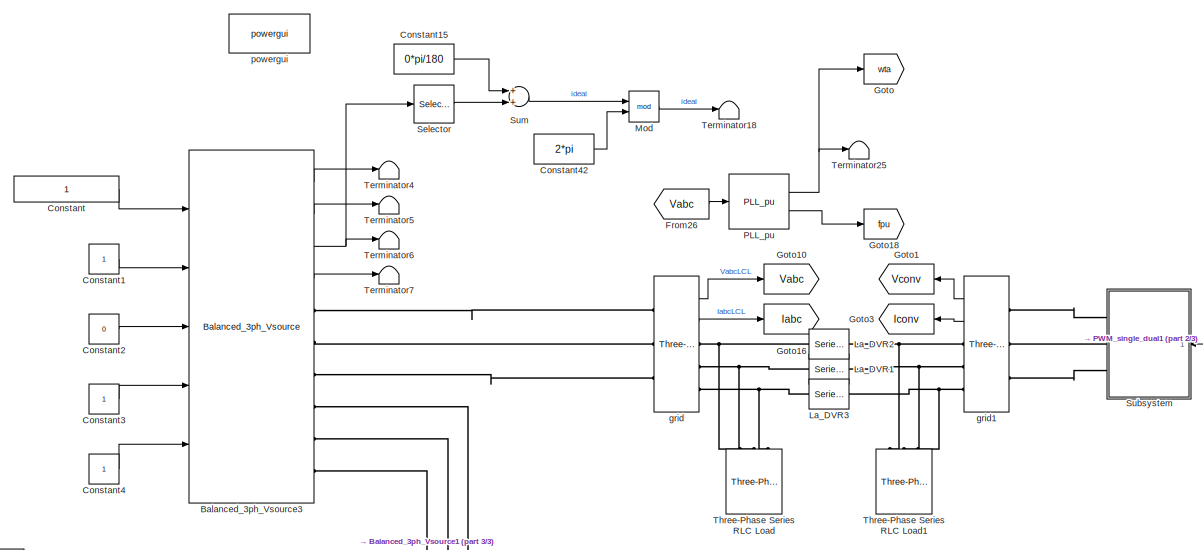
[diagram: root canvas - part 1/3, top left region]
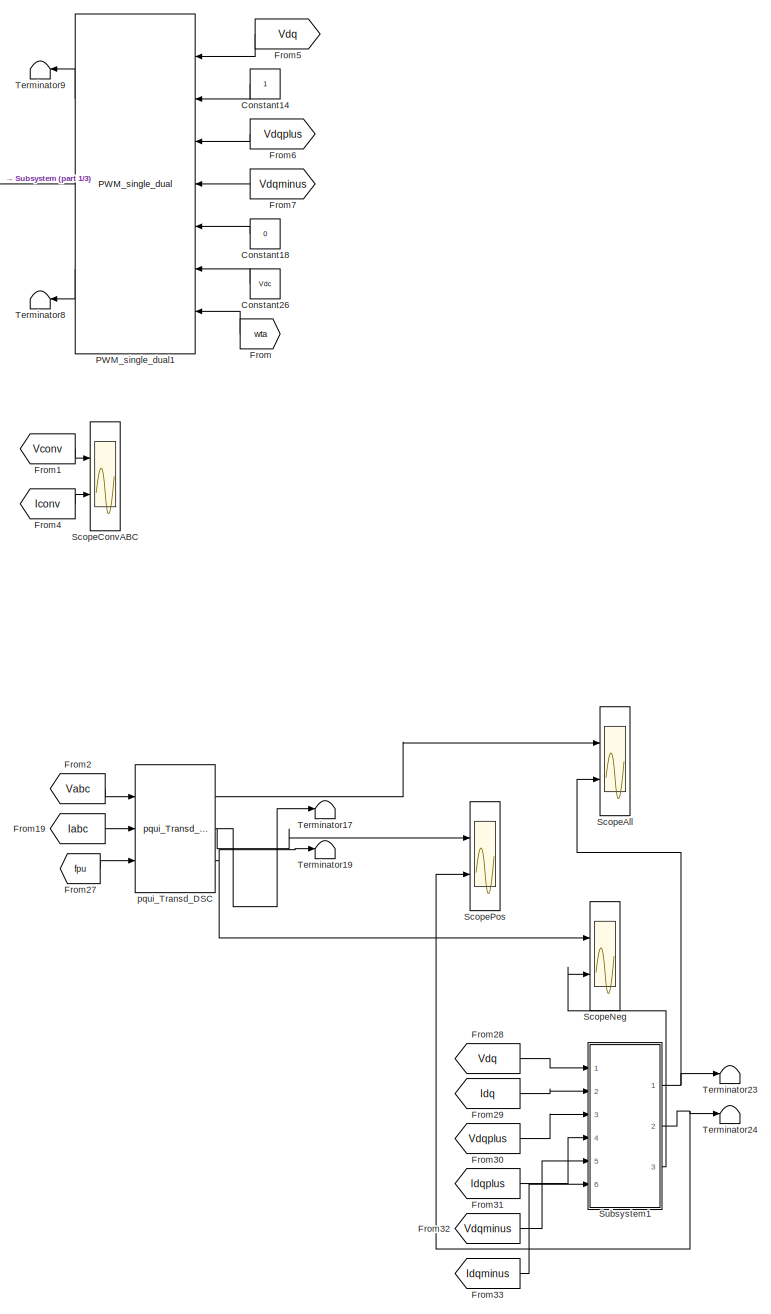
[diagram: root canvas - part 2/3, right side, full height]
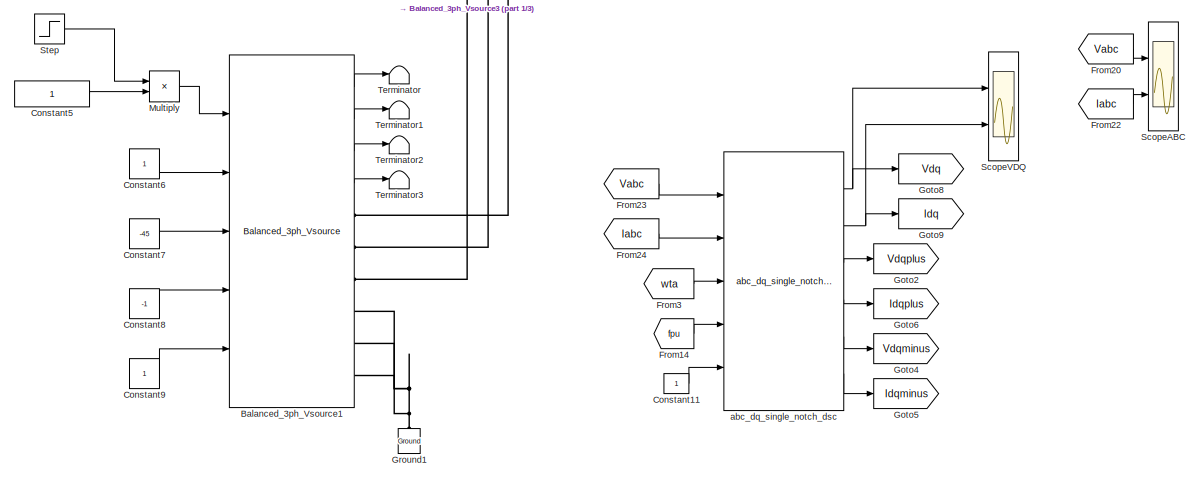
[diagram: root canvas - part 3/3, middle left region]
MODEL slx_2fd5eea96e40
KIND model
CONFIG AbsTol = auto
CONFIG EnableMultiTasking = off
CONFIG FixedStep = Ts
CONFIG InitFcn = SequenceSeparation_script
CONFIG MaxStep = auto
CONFIG MinStep = auto
CONFIG RelTol = 1e-3
CONFIG SampleTimeConstraint = Unconstrained
CONFIG Solver = ode5
CONFIG SolverName = ode5
CONFIG StartTime = 0.0
CONFIG StopTime = 0.2
BLOCK [Reference] Balanced_3ph_Vsource1  REF=pwrsysVSrc_202301/Balanced_3ph_Vsource
  Ports = [5, 4, 0, 0, 0, 0, 6]
  SourceBlock = pwrsysVSrc_202301/Balanced_3ph_Vsource
  SourceType = Three-phase balanced voltage source
BLOCK [Reference] Balanced_3ph_Vsource3  REF=pwrsysVSrc_202301/Balanced_3ph_Vsource
  Ports = [5, 4, 0, 0, 0, 0, 6]
  SourceBlock = pwrsysVSrc_202301/Balanced_3ph_Vsource
  SourceType = Three-phase balanced voltage source
BLOCK [Constant] Constant
BLOCK [Constant] Constant1
BLOCK [Constant] Constant11
BLOCK [Constant] Constant14
BLOCK [Constant] Constant15
  Value = 0*pi/180
BLOCK [Constant] Constant18
  Value = 0
BLOCK [Constant] Constant2
  Value = 0
BLOCK [Constant] Constant26
  Value = Vdc
BLOCK [Constant] Constant3
BLOCK [Constant] Constant4
BLOCK [Constant] Constant42
  Value = 2*pi
BLOCK [Constant] Constant5
BLOCK [Constant] Constant6
BLOCK [Constant] Constant7
  Value = -45
BLOCK [Constant] Constant8
  Value = -1
BLOCK [Constant] Constant9
BLOCK [From] From
  GotoTag = wta
BLOCK [From] From1
  GotoTag = Vconv
BLOCK [From] From14
  GotoTag = fpu
BLOCK [From] From19
  GotoTag = Iabc
BLOCK [From] From2
  GotoTag = Vabc
BLOCK [From] From20
  GotoTag = Vabc
BLOCK [From] From22
  GotoTag = Iabc
BLOCK [From] From23
  GotoTag = Vabc
BLOCK [From] From24
  GotoTag = Iabc
BLOCK [From] From26
  GotoTag = Vabc
BLOCK [From] From27
  GotoTag = fpu
BLOCK [From] From28
  GotoTag = Vdq
BLOCK [From] From29
  GotoTag = Idq
BLOCK [From] From3
  GotoTag = wta
BLOCK [From] From30
  GotoTag = Vdqplus
BLOCK [From] From31
  GotoTag = Idqplus
BLOCK [From] From32
  GotoTag = Vdqminus
BLOCK [From] From33
  GotoTag = Idqminus
BLOCK [From] From4
  GotoTag = Iconv
BLOCK [From] From5
  GotoTag = Vdq
BLOCK [From] From6
  GotoTag = Vdqplus
BLOCK [From] From7
  GotoTag = Vdqminus
BLOCK [Goto] Goto
  GotoTag = wta
BLOCK [Goto] Goto1
  GotoTag = Vconv
BLOCK [Goto] Goto10
  GotoTag = Vabc
BLOCK [Goto] Goto16
  GotoTag = Iabc
BLOCK [Goto] Goto18
  GotoTag = fpu
BLOCK [Goto] Goto2
  GotoTag = Vdqplus
BLOCK [Goto] Goto3
  GotoTag = Iconv
BLOCK [Goto] Goto4
  GotoTag = Vdqminus
BLOCK [Goto] Goto5
  GotoTag = Idqminus
BLOCK [Goto] Goto6
  GotoTag = Idqplus
BLOCK [Goto] Goto8
  GotoTag = Vdq
BLOCK [Goto] Goto9
  GotoTag = Idq
BLOCK [Reference] Ground1  REF=powerlib/Elements/Ground
  Ports = [0, 0, 0, 0, 0, 1]
  SourceBlock = powerlib/Elements/Ground
  SourceProductBaseCode = PS
  SourceProductName = Simscape Power Systems
  SourceType = Ground
BLOCK [Reference] La_DVR1  REF=powerlib/Elements/Series RLC Branch
  AttributesFormatString = \n
  Commented = on
  Ports = [0, 0, 0, 0, 0, 1, 1]
  SourceBlock = powerlib/Elements/Series RLC Branch
  SourceProductBaseCode = PS
  SourceProductName = Simscape Power Systems
  SourceType = Series RLC Branch
BLOCK [Reference] La_DVR2  REF=powerlib/Elements/Series RLC Branch
  AttributesFormatString = \n
  Commented = on
  Ports = [0, 0, 0, 0, 0, 1, 1]
  SourceBlock = powerlib/Elements/Series RLC Branch
  SourceProductBaseCode = PS
  SourceProductName = Simscape Power Systems
  SourceType = Series RLC Branch
BLOCK [Reference] La_DVR3  REF=powerlib/Elements/Series RLC Branch
  AttributesFormatString = \n
  Commented = on
  Ports = [0, 0, 0, 0, 0, 1, 1]
  SourceBlock = powerlib/Elements/Series RLC Branch
  SourceProductBaseCode = PS
  SourceProductName = Simscape Power Systems
  SourceType = Series RLC Branch
BLOCK [Math] Mod
  Operator = mod
  Ports = [2, 1]
BLOCK [Product] Multiply
  InputSameDT = off
  OutDataTypeStr = Inherit: Inherit via internal rule
  Ports = [2, 1]
  RndMeth = Floor
  SaturateOnIntegerOverflow = off
BLOCK [Reference] PLL_pu  REF=pwrsysBasic_202301/PLL_pu
  Ports = [1, 2]
  SourceBlock = pwrsysBasic_202301/PLL_pu
  SourceType = Matlabs PLL with POS and NEG omega t output
BLOCK [Reference] PWM_single_dual1  REF=pwrsysVICtrl_202301/PWM_single_dual
  Ports = [7, 3]
  SourceBlock = pwrsysVICtrl_202301/PWM_single_dual
  SourceType = Scaling of vdq ref and PWM gate generation
BLOCK [Scope] ScopeABC
  Floating = off
  NumInputPorts = 2
  Ports = [2]
  ScopeSpecificationString = Simulink.scopes.TimeScopeBlockCfg('CurrentConfiguration', extmgr.ConfigurationSet(extmgr.Configuration('Core','General UI',true),extmgr.Configuration('Core','Source UI',true),extmgr.Configuration('Sources','WiredSimulink',true),extmgr.Configuration('Visuals','Time Domain',true,'SerializedDisplays',{struct('MinYLimReal','-2.3097','MaxYLimReal','2.3097','YLabelReal','','MinYLimMag','0.00000','MaxYLi...<+2153ch>
BLOCK [Scope] ScopeAll
  Floating = off
  NumInputPorts = 2
  Ports = [2]
  ScopeSpecificationString = Simulink.scopes.TimeScopeBlockCfg('CurrentConfiguration', extmgr.ConfigurationSet(extmgr.Configuration('Core','General UI',true),extmgr.Configuration('Core','Source UI',true),extmgr.Configuration('Sources','WiredSimulink',true,'DataLoggingVariableName','ScopeData1'),extmgr.Configuration('Visuals','Time Domain',true,'SerializedDisplays',{struct('MinYLimReal','-0.50813','MaxYLimReal','2.54674','YLab...<+2265ch>
BLOCK [Scope] ScopeConvABC
  Floating = off
  NumInputPorts = 2
  Ports = [2]
  ScopeSpecificationString = Simulink.scopes.TimeScopeBlockCfg('CurrentConfiguration', extmgr.ConfigurationSet(extmgr.Configuration('Core','General UI',true),extmgr.Configuration('Core','Source UI',true),extmgr.Configuration('Sources','WiredSimulink',true,'DataLoggingVariableName','ScopeData1'),extmgr.Configuration('Visuals','Time Domain',true,'SerializedDisplays',{struct('MinYLimReal','-2.30941','MaxYLimReal','2.30941','YLab...<+2216ch>
BLOCK [Scope] ScopeNeg
  Floating = off
  NumInputPorts = 2
  Ports = [2]
  ScopeSpecificationString = Simulink.scopes.TimeScopeBlockCfg('CurrentConfiguration', extmgr.ConfigurationSet(extmgr.Configuration('Core','General UI',true),extmgr.Configuration('Core','Source UI',true),extmgr.Configuration('Sources','WiredSimulink',true,'DataLoggingVariableName','ScopeData3'),extmgr.Configuration('Visuals','Time Domain',true,'SerializedDisplays',{struct('MinYLimReal','-0.3125','MaxYLimReal','1.14583','YLabe...<+2210ch>
BLOCK [Scope] ScopePos
  Floating = off
  NumInputPorts = 2
  Ports = [2]
  ScopeSpecificationString = Simulink.scopes.TimeScopeBlockCfg('CurrentConfiguration', extmgr.ConfigurationSet(extmgr.Configuration('Core','General UI',true),extmgr.Configuration('Core','Source UI',true),extmgr.Configuration('Sources','WiredSimulink',true,'DataLoggingVariableName','ScopeData2'),extmgr.Configuration('Visuals','Time Domain',true,'SerializedDisplays',{struct('MinYLimReal','-5.49075','MaxYLimReal','5.54829','YLab...<+2211ch>
BLOCK [Scope] ScopeVDQ
  Floating = off
  NumInputPorts = 2
  Ports = [2]
  ScopeSpecificationString = Simulink.scopes.TimeScopeBlockCfg('CurrentConfiguration', extmgr.ConfigurationSet(extmgr.Configuration('Core','General UI',true),extmgr.Configuration('Core','Source UI',true),extmgr.Configuration('Sources','WiredSimulink',true,'DataLoggingVariableName','ScopeData4'),extmgr.Configuration('Visuals','Time Domain',true,'SerializedDisplays',{struct('MinYLimReal','-1.48486','MaxYLimReal','2.38692','YLab...<+2239ch>
BLOCK [Selector] Selector
  IndexOptions = Index vector (dialog)
  Indices = [1]
  InputPortWidth = 3
  OutputSizes = 1
  Ports = [1, 1]
BLOCK [Step] Step
  SampleTime = 0
  Time = 0.1
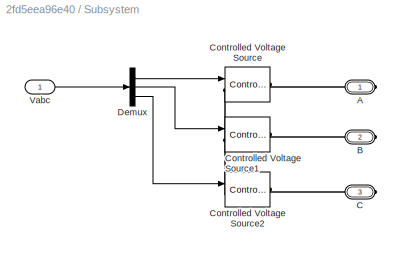
BLOCK [SubSystem] Subsystem
  Ports = [1, 0, 0, 0, 0, 0, 3]
  RequestExecContextInheritance = off
BLOCK [PMIOPort] Subsystem/A
  Side = Right
BLOCK [PMIOPort] Subsystem/B
  Port = 2
  Side = Right
BLOCK [PMIOPort] Subsystem/C
  Port = 3
  Side = Right
BLOCK [Reference] Subsystem/Controlled Voltage Source  REF=powerlib/Electrical
Sources/Controlled Voltage Source
  Ports = [1, 0, 0, 0, 0, 1, 1]
  SourceBlock = powerlib/Electrical\nSources/Controlled Voltage Source
  SourceProductBaseCode = PS
  SourceProductName = Simscape Power Systems
  SourceType = Controlled Voltage Source
BLOCK [Reference] Subsystem/Controlled Voltage Source1  REF=powerlib/Electrical
Sources/Controlled Voltage Source
  Ports = [1, 0, 0, 0, 0, 1, 1]
  SourceBlock = powerlib/Electrical\nSources/Controlled Voltage Source
  SourceProductBaseCode = PS
  SourceProductName = Simscape Power Systems
  SourceType = Controlled Voltage Source
BLOCK [Reference] Subsystem/Controlled Voltage Source2  REF=powerlib/Electrical
Sources/Controlled Voltage Source
  Ports = [1, 0, 0, 0, 0, 1, 1]
  SourceBlock = powerlib/Electrical\nSources/Controlled Voltage Source
  SourceProductBaseCode = PS
  SourceProductName = Simscape Power Systems
  SourceType = Controlled Voltage Source
BLOCK [Demux] Subsystem/Demux
  DisplayOption = bar
  Outputs = 3
  Ports = [1, 3]
BLOCK [Inport] Subsystem/Vabc
  IconDisplay = Port number
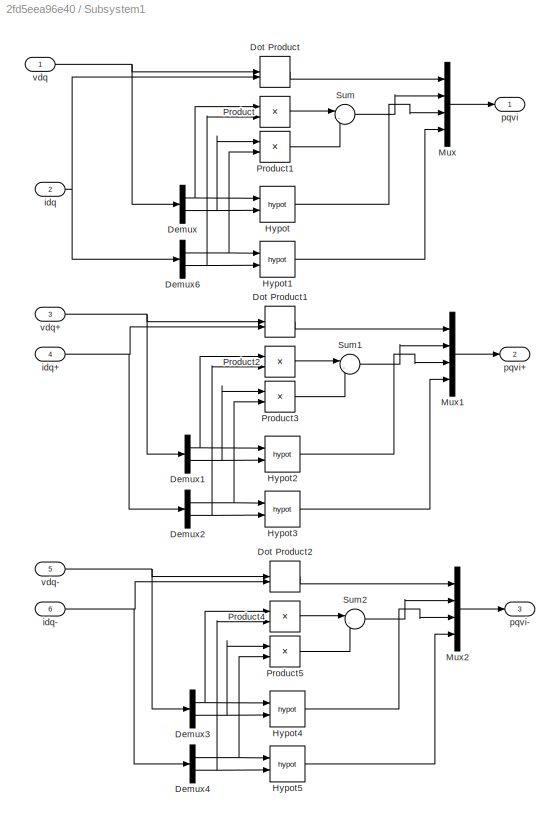
BLOCK [SubSystem] Subsystem1
  Ports = [6, 3]
  RequestExecContextInheritance = off
BLOCK [Demux] Subsystem1/Demux
  DisplayOption = bar
  Outputs = 2
  Ports = [1, 2]
BLOCK [Demux] Subsystem1/Demux1
  DisplayOption = bar
  Outputs = 2
  Ports = [1, 2]
BLOCK [Demux] Subsystem1/Demux2
  DisplayOption = bar
  Outputs = 2
  Ports = [1, 2]
BLOCK [Demux] Subsystem1/Demux3
  DisplayOption = bar
  Outputs = 2
  Ports = [1, 2]
BLOCK [Demux] Subsystem1/Demux4
  DisplayOption = bar
  Outputs = 2
  Ports = [1, 2]
BLOCK [Demux] Subsystem1/Demux6
  DisplayOption = bar
  Outputs = 2
  Ports = [1, 2]
BLOCK [DotProduct] Subsystem1/Dot Product
  OutDataTypeStr = Inherit: Inherit via internal rule
BLOCK [DotProduct] Subsystem1/Dot Product1
  OutDataTypeStr = Inherit: Inherit via internal rule
BLOCK [DotProduct] Subsystem1/Dot Product2
  OutDataTypeStr = Inherit: Inherit via internal rule
BLOCK [Math] Subsystem1/Hypot
  Operator = hypot
  Ports = [2, 1]
BLOCK [Math] Subsystem1/Hypot1
  Operator = hypot
  Ports = [2, 1]
BLOCK [Math] Subsystem1/Hypot2
  Operator = hypot
  Ports = [2, 1]
BLOCK [Math] Subsystem1/Hypot3
  Operator = hypot
  Ports = [2, 1]
BLOCK [Math] Subsystem1/Hypot4
  Operator = hypot
  Ports = [2, 1]
BLOCK [Math] Subsystem1/Hypot5
  Operator = hypot
  Ports = [2, 1]
BLOCK [Mux] Subsystem1/Mux
  DisplayOption = bar
  Ports = [4, 1]
BLOCK [Mux] Subsystem1/Mux1
  DisplayOption = bar
  Ports = [4, 1]
BLOCK [Mux] Subsystem1/Mux2
  DisplayOption = bar
  Ports = [4, 1]
BLOCK [Product] Subsystem1/Product
  InputSameDT = off
  OutDataTypeStr = Inherit: Inherit via internal rule
  Ports = [2, 1]
  RndMeth = Floor
  SaturateOnIntegerOverflow = off
BLOCK [Product] Subsystem1/Product1
  InputSameDT = off
  OutDataTypeStr = Inherit: Inherit via internal rule
  Ports = [2, 1]
  RndMeth = Floor
  SaturateOnIntegerOverflow = off
BLOCK [Product] Subsystem1/Product2
  InputSameDT = off
  OutDataTypeStr = Inherit: Inherit via internal rule
  Ports = [2, 1]
  RndMeth = Floor
  SaturateOnIntegerOverflow = off
BLOCK [Product] Subsystem1/Product3
  InputSameDT = off
  OutDataTypeStr = Inherit: Inherit via internal rule
  Ports = [2, 1]
  RndMeth = Floor
  SaturateOnIntegerOverflow = off
BLOCK [Product] Subsystem1/Product4
  InputSameDT = off
  OutDataTypeStr = Inherit: Inherit via internal rule
  Ports = [2, 1]
  RndMeth = Floor
  SaturateOnIntegerOverflow = off
BLOCK [Product] Subsystem1/Product5
  InputSameDT = off
  OutDataTypeStr = Inherit: Inherit via internal rule
  Ports = [2, 1]
  RndMeth = Floor
  SaturateOnIntegerOverflow = off
BLOCK [Sum] Subsystem1/Sum
  IconShape = round
  InputSameDT = off
  Inputs = |-+
  OutDataTypeStr = Inherit: Inherit via internal rule
  Ports = [2, 1]
  SaturateOnIntegerOverflow = off
BLOCK [Sum] Subsystem1/Sum1
  IconShape = round
  InputSameDT = off
  Inputs = |-+
  OutDataTypeStr = Inherit: Inherit via internal rule
  Ports = [2, 1]
  SaturateOnIntegerOverflow = off
BLOCK [Sum] Subsystem1/Sum2
  IconShape = round
  InputSameDT = off
  Inputs = |-+
  OutDataTypeStr = Inherit: Inherit via internal rule
  Ports = [2, 1]
  SaturateOnIntegerOverflow = off
BLOCK [Inport] Subsystem1/idq
  IconDisplay = Port number
  Port = 2
BLOCK [Inport] Subsystem1/idq+
  IconDisplay = Port number
  Port = 4
BLOCK [Inport] Subsystem1/idq-
  IconDisplay = Port number
  Port = 6
BLOCK [Outport] Subsystem1/pqvi
  IconDisplay = Port number
BLOCK [Outport] Subsystem1/pqvi+
  IconDisplay = Port number
  Port = 2
BLOCK [Outport] Subsystem1/pqvi-
  IconDisplay = Port number
  Port = 3
BLOCK [Inport] Subsystem1/vdq
  IconDisplay = Port number
BLOCK [Inport] Subsystem1/vdq+
  IconDisplay = Port number
  Port = 3
BLOCK [Inport] Subsystem1/vdq-
  IconDisplay = Port number
  Port = 5
BLOCK [Sum] Sum
  InputSameDT = off
  OutDataTypeStr = Inherit: Inherit via internal rule
  Ports = [2, 1]
  SaturateOnIntegerOverflow = off
BLOCK [Terminator] Terminator
BLOCK [Terminator] Terminator1
BLOCK [Terminator] Terminator17
BLOCK [Terminator] Terminator18
BLOCK [Terminator] Terminator19
BLOCK [Terminator] Terminator2
BLOCK [Terminator] Terminator23
BLOCK [Terminator] Terminator24
BLOCK [Terminator] Terminator25
BLOCK [Terminator] Terminator3
BLOCK [Terminator] Terminator4
BLOCK [Terminator] Terminator5
BLOCK [Terminator] Terminator6
BLOCK [Terminator] Terminator7
BLOCK [Terminator] Terminator8
BLOCK [Terminator] Terminator9
BLOCK [Reference] Three-Phase Series RLC Load  REF=powerlib/Elements/Three-Phase
Series RLC Load
  AttributesFormatString = \n
  Ports = [0, 0, 0, 0, 0, 3]
  SourceBlock = powerlib/Elements/Three-Phase\nSeries RLC Load
  SourceProductBaseCode = PS
  SourceProductName = Simscape Power Systems
  SourceType = Three-Phase Series RLC Load
BLOCK [Reference] Three-Phase Series RLC Load1  REF=powerlib/Elements/Three-Phase
Series RLC Load
  AttributesFormatString = \n
  Ports = [0, 0, 0, 0, 0, 3]
  SourceBlock = powerlib/Elements/Three-Phase\nSeries RLC Load
  SourceProductBaseCode = PS
  SourceProductName = Simscape Power Systems
  SourceType = Three-Phase Series RLC Load
BLOCK [Reference] abc_dq_single_notch_dsc  REF=pwrsysTransf_202301/abc_dq_single_notch_dsc
  Ports = [5, 6]
  SourceBlock = pwrsysTransf_202301/abc_dq_single_notch_dsc
  SourceType = abc->dq with Matlab
BLOCK [Reference] grid  REF=powerlib/Measurements/Three-Phase
V-I Measurement
  Ports = [0, 2, 0, 0, 0, 3, 3]
  SourceBlock = powerlib/Measurements/Three-Phase\nV-I Measurement
  SourceProductBaseCode = PS
  SourceProductName = Simscape Power Systems
  SourceType = Three-Phase VI Measurement
BLOCK [Reference] grid1  REF=powerlib/Measurements/Three-Phase
V-I Measurement
  Ports = [0, 2, 0, 0, 0, 3, 3]
  SourceBlock = powerlib/Measurements/Three-Phase\nV-I Measurement
  SourceProductBaseCode = PS
  SourceProductName = Simscape Power Systems
  SourceType = Three-Phase VI Measurement
BLOCK [Reference] powergui  REF=powerlib/powergui
  Ports = []
  Priority = 1
  SourceBlock = powerlib/powergui
  SourceProductBaseCode = PS
  SourceProductName = Simscape Power Systems
  SourceType = PSB option menu block
BLOCK [Reference] pqui_Transd_DSC  REF=pwrsysBasic_202301/pqui_Transd_DSC
  Ports = [3, 3]
  SourceBlock = pwrsysBasic_202301/pqui_Transd_DSC
  SourceType = DSC u i p q transducer - No zero sequence
LINE Balanced_3ph_Vsource1:1 -> Terminator:1
LINE Balanced_3ph_Vsource1:2 -> Terminator1:1
LINE Balanced_3ph_Vsource1:3 -> Terminator2:1
LINE Balanced_3ph_Vsource1:4 -> Terminator3:1
LINE Balanced_3ph_Vsource3:1 -> Terminator4:1
LINE Balanced_3ph_Vsource3:2 -> Terminator5:1
NET Balanced_3ph_Vsource3:3 -> Selector:1, Terminator6:1
LINE Balanced_3ph_Vsource3:4 -> Terminator7:1
LINE Constant11:1 -> abc_dq_single_notch_dsc:5
LINE Constant14:1 -> PWM_single_dual1:2
LINE Constant15:1 -> Sum:1
LINE Constant18:1 -> PWM_single_dual1:5
LINE Constant1:1 -> Balanced_3ph_Vsource3:2
LINE Constant26:1 -> PWM_single_dual1:6
LINE Constant2:1 -> Balanced_3ph_Vsource3:3
LINE Constant3:1 -> Balanced_3ph_Vsource3:4
LINE Constant42:1 -> Mod:2
LINE Constant4:1 -> Balanced_3ph_Vsource3:5
LINE Constant5:1 -> Multiply:2
LINE Constant6:1 -> Balanced_3ph_Vsource1:2
LINE Constant7:1 -> Balanced_3ph_Vsource1:3
LINE Constant8:1 -> Balanced_3ph_Vsource1:4
LINE Constant9:1 -> Balanced_3ph_Vsource1:5
LINE Constant:1 -> Balanced_3ph_Vsource3:1
LINE From14:1 -> abc_dq_single_notch_dsc:4
LINE From19:1 -> pqui_Transd_DSC:2
LINE From1:1 -> ScopeConvABC:1
LINE From20:1 -> ScopeABC:1
LINE From22:1 -> ScopeABC:2
LINE From23:1 -> abc_dq_single_notch_dsc:1
LINE From24:1 -> abc_dq_single_notch_dsc:2
LINE From26:1 -> PLL_pu:1
LINE From27:1 -> pqui_Transd_DSC:3
LINE From28:1 -> Subsystem1:1
LINE From29:1 -> Subsystem1:2
LINE From2:1 -> pqui_Transd_DSC:1
LINE From30:1 -> Subsystem1:3
LINE From31:1 -> Subsystem1:4
LINE From32:1 -> Subsystem1:5
LINE From33:1 -> Subsystem1:6
LINE From3:1 -> abc_dq_single_notch_dsc:3
LINE From4:1 -> ScopeConvABC:2
LINE From5:1 -> PWM_single_dual1:1
LINE From6:1 -> PWM_single_dual1:3
LINE From7:1 -> PWM_single_dual1:4
LINE From:1 -> PWM_single_dual1:7
LINE Mod:1 -> Terminator18:1
LINE Multiply:1 -> Balanced_3ph_Vsource1:1
NET PLL_pu:1 -> Goto:1, Terminator25:1
LINE PLL_pu:2 -> Goto18:1
LINE PWM_single_dual1:1 -> Terminator9:1
LINE PWM_single_dual1:2 -> Subsystem:1
LINE PWM_single_dual1:3 -> Terminator8:1
LINE Selector:1 -> Sum:2
LINE Step:1 -> Multiply:1
LINE Subsystem/Demux:1 -> Subsystem/Controlled Voltage Source:1
LINE Subsystem/Demux:2 -> Subsystem/Controlled Voltage Source1:1
LINE Subsystem/Demux:3 -> Subsystem/Controlled Voltage Source2:1
LINE Subsystem/Vabc:1 -> Subsystem/Demux:1
NET Subsystem1/Demux1:1 -> Subsystem1/Hypot2:1, Subsystem1/Product2:1
NET Subsystem1/Demux1:2 -> Subsystem1/Hypot2:2, Subsystem1/Product3:1
NET Subsystem1/Demux2:1 -> Subsystem1/Hypot3:1, Subsystem1/Product3:2
NET Subsystem1/Demux2:2 -> Subsystem1/Hypot3:2, Subsystem1/Product2:2
NET Subsystem1/Demux3:1 -> Subsystem1/Hypot4:1, Subsystem1/Product4:1
NET Subsystem1/Demux3:2 -> Subsystem1/Hypot4:2, Subsystem1/Product5:1
NET Subsystem1/Demux4:1 -> Subsystem1/Hypot5:1, Subsystem1/Product5:2
NET Subsystem1/Demux4:2 -> Subsystem1/Hypot5:2, Subsystem1/Product4:2
NET Subsystem1/Demux6:1 -> Subsystem1/Hypot1:1, Subsystem1/Product1:2
NET Subsystem1/Demux6:2 -> Subsystem1/Hypot1:2, Subsystem1/Product:2
NET Subsystem1/Demux:1 -> Subsystem1/Hypot:1, Subsystem1/Product:1
NET Subsystem1/Demux:2 -> Subsystem1/Hypot:2, Subsystem1/Product1:1
LINE Subsystem1/Dot Product1:1 -> Subsystem1/Mux1:1
LINE Subsystem1/Dot Product2:1 -> Subsystem1/Mux2:1
LINE Subsystem1/Dot Product:1 -> Subsystem1/Mux:1
LINE Subsystem1/Hypot1:1 -> Subsystem1/Mux:4
LINE Subsystem1/Hypot2:1 -> Subsystem1/Mux1:3
LINE Subsystem1/Hypot3:1 -> Subsystem1/Mux1:4
LINE Subsystem1/Hypot4:1 -> Subsystem1/Mux2:3
LINE Subsystem1/Hypot5:1 -> Subsystem1/Mux2:4
LINE Subsystem1/Hypot:1 -> Subsystem1/Mux:3
LINE Subsystem1/Mux1:1 -> Subsystem1/pqvi+:1
LINE Subsystem1/Mux2:1 -> Subsystem1/pqvi-:1
LINE Subsystem1/Mux:1 -> Subsystem1/pqvi:1
LINE Subsystem1/Product1:1 -> Subsystem1/Sum:2
LINE Subsystem1/Product2:1 -> Subsystem1/Sum1:1
LINE Subsystem1/Product3:1 -> Subsystem1/Sum1:2
LINE Subsystem1/Product4:1 -> Subsystem1/Sum2:1
LINE Subsystem1/Product5:1 -> Subsystem1/Sum2:2
LINE Subsystem1/Product:1 -> Subsystem1/Sum:1
LINE Subsystem1/Sum1:1 -> Subsystem1/Mux1:2
LINE Subsystem1/Sum2:1 -> Subsystem1/Mux2:2
LINE Subsystem1/Sum:1 -> Subsystem1/Mux:2
NET Subsystem1/idq+:1 -> Subsystem1/Demux2:1, Subsystem1/Dot Product1:2
NET Subsystem1/idq-:1 -> Subsystem1/Demux4:1, Subsystem1/Dot Product2:2
NET Subsystem1/idq:1 -> Subsystem1/Demux6:1, Subsystem1/Dot Product:2
NET Subsystem1/vdq+:1 -> Subsystem1/Demux1:1, Subsystem1/Dot Product1:1
NET Subsystem1/vdq-:1 -> Subsystem1/Demux3:1, Subsystem1/Dot Product2:1
NET Subsystem1/vdq:1 -> Subsystem1/Demux:1, Subsystem1/Dot Product:1
NET Subsystem1:1 -> ScopeAll:2, Terminator23:1
NET Subsystem1:2 -> ScopePos:2, Terminator24:1
LINE Subsystem1:3 -> ScopeNeg:2
LINE Sum:1 -> Mod:1
NET abc_dq_single_notch_dsc:1 -> Goto8:1, ScopeVDQ:1
NET abc_dq_single_notch_dsc:2 -> Goto9:1, ScopeVDQ:2
LINE abc_dq_single_notch_dsc:3 -> Goto2:1
LINE abc_dq_single_notch_dsc:4 -> Goto6:1
LINE abc_dq_single_notch_dsc:5 -> Goto4:1
LINE abc_dq_single_notch_dsc:6 -> Goto5:1
LINE grid1:1 -> Goto1:1
LINE grid1:2 -> Goto3:1
LINE grid:1 -> Goto10:1
LINE grid:2 -> Goto16:1
LINE pqui_Transd_DSC:1 -> ScopeAll:1
NET pqui_Transd_DSC:2 -> ScopePos:1, Terminator17:1
NET pqui_Transd_DSC:3 -> ScopeNeg:1, Terminator19:1
PLINE Balanced_3ph_Vsource1:RConn1 -- Balanced_3ph_Vsource3:RConn4
PLINE Balanced_3ph_Vsource1:RConn2 -- Balanced_3ph_Vsource3:RConn5
PLINE Balanced_3ph_Vsource1:RConn3 -- Balanced_3ph_Vsource3:RConn6
PNET net1: Balanced_3ph_Vsource1:RConn4 -- Balanced_3ph_Vsource1:RConn5 -- Balanced_3ph_Vsource1:RConn6 -- Ground1:LConn1
PLINE Balanced_3ph_Vsource3:RConn1 -- grid:LConn1
PLINE Balanced_3ph_Vsource3:RConn2 -- grid:LConn2
PLINE Balanced_3ph_Vsource3:RConn3 -- grid:LConn3
PNET net2: La_DVR1:LConn1 -- Three-Phase Series RLC Load1:LConn2 -- grid1:RConn2
PNET net3: La_DVR1:RConn1 -- Three-Phase Series RLC Load:LConn2 -- grid:RConn2
PNET net4: La_DVR2:LConn1 -- Three-Phase Series RLC Load1:LConn1 -- grid1:RConn1
PNET net5: La_DVR2:RConn1 -- Three-Phase Series RLC Load:LConn1 -- grid:RConn1
PNET net6: La_DVR3:LConn1 -- Three-Phase Series RLC Load1:LConn3 -- grid1:RConn3
PNET net7: La_DVR3:RConn1 -- Three-Phase Series RLC Load:LConn3 -- grid:RConn3
PLINE Subsystem/A:RConn1 -- Subsystem/Controlled Voltage Source:RConn1
PLINE Subsystem/B:RConn1 -- Subsystem/Controlled Voltage Source1:RConn1
PLINE Subsystem/C:RConn1 -- Subsystem/Controlled Voltage Source2:RConn1
PNET net8: Subsystem/Controlled Voltage Source1:LConn1 -- Subsystem/Controlled Voltage Source2:LConn1 -- Subsystem/Controlled Voltage Source:LConn1
PLINE Subsystem:RConn1 -- grid1:LConn1
PLINE Subsystem:RConn2 -- grid1:LConn2
PLINE Subsystem:RConn3 -- grid1:LConn3
note: NET lines group one-source signal fan-out (src -> all destinations, sorted); 1:1 wires keep LINE; PNET lines group multi-terminal physical nets as a canonical sorted terminal list (undirected conserving connections); 2-terminal nets keep the pairwise PLINE form
